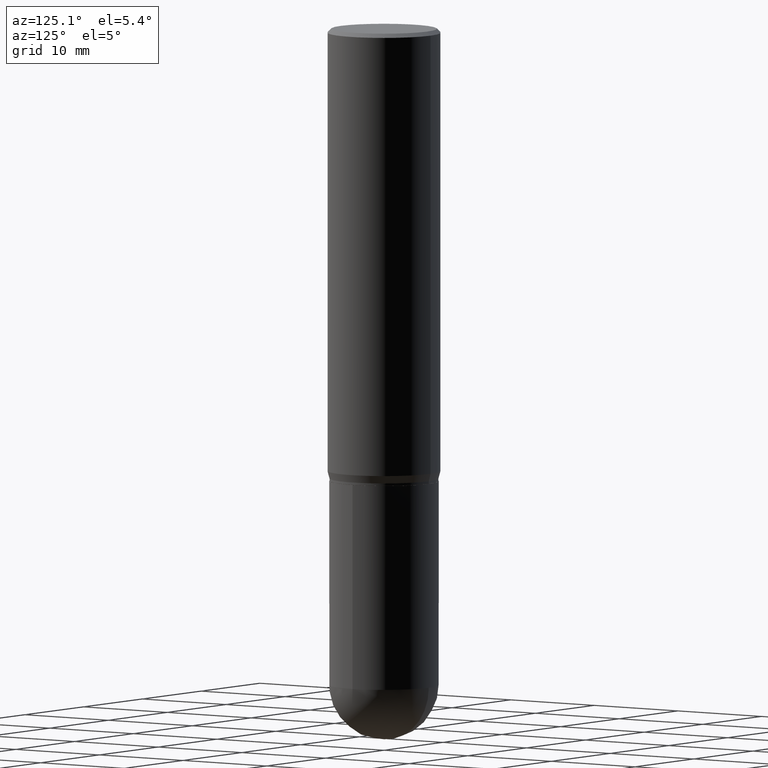
[diagram: clean part render]
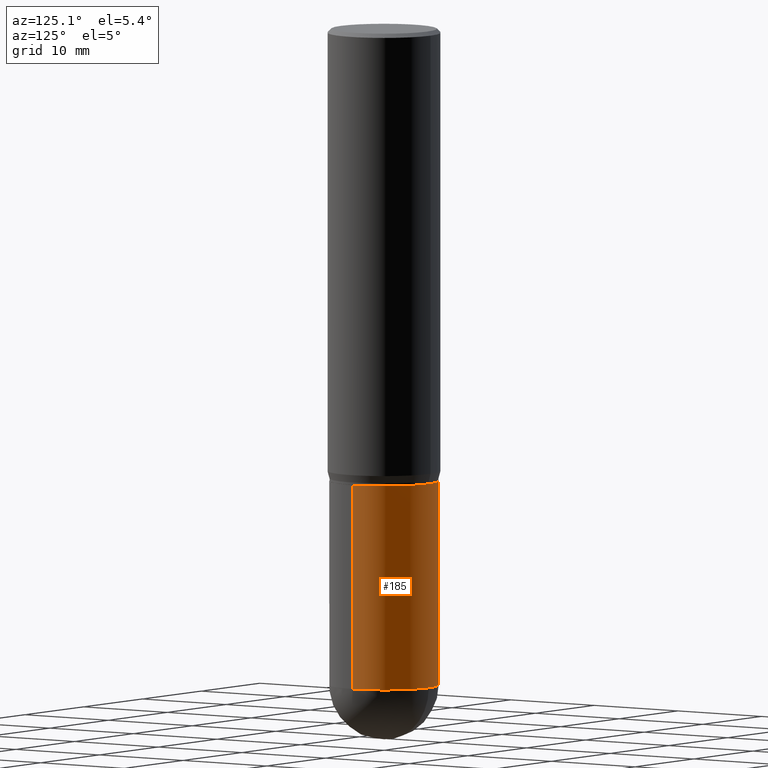
[diagram: same view with one face highlighted and labeled with its STEP entity id]
A machine part, auxiliary view. The second image highlights one B-rep face of the part: STEP entity #185.
In plain terms, the highlighted cylindrical surface (partial cylindrical patch) has radius 5.3581 mm, axis along (-0, 0, 1).
Its self-contained STEP definition (entity closure, byte-faithful):
#1 = VERTEX_POINT ( 'NONE', #20 ) ;
#7 = CIRCLE ( 'NONE', #248, 0.2109499999999999986 ) ;
#20 = CARTESIAN_POINT ( 'NONE',  ( 0.2109500000000000541, -8.960624995040515044E-15, -2.539050000000000473 ) ) ;
#23 = CARTESIAN_POINT ( 'NONE',  ( 1.473055976857980082E-15, 0.2109499999999912001, -2.539050000000000917 ) ) ;
#32 = CIRCLE ( 'NONE', #385, 0.2109500000000000541 ) ;
#41 = ORIENTED_EDGE ( 'NONE', *, *, #70, .F. ) ;
#47 = DIRECTION ( 'NONE',  ( -2.445468806185136877E-29, 3.491481338843145188E-15, 1.000000000000000000 ) ) ;
#52 = LINE ( 'NONE', #206, #106 ) ;
#70 = EDGE_CURVE ( 'NONE', #1, #177, #52, .T. ) ;
#71 = DIRECTION ( 'NONE',  ( 1.000000000000000000, -6.982962677686265133E-15, 0.000000000000000000 ) ) ;
#78 = ORIENTED_EDGE ( 'NONE', *, *, #363, .T. ) ;
#84 = FACE_OUTER_BOUND ( 'NONE', #151, .T. ) ;
#87 = CYLINDRICAL_SURFACE ( 'NONE', #259, 0.2109500000000000541 ) ;
#91 = VECTOR ( 'NONE', #47, 39.37007874015748143 ) ;
#104 = DIRECTION ( 'NONE',  ( 1.000000000000000000, -6.982962677686266711E-15, 0.000000000000000000 ) ) ;
#106 = VECTOR ( 'NONE', #359, 39.37007874015748143 ) ;
#127 = CARTESIAN_POINT ( 'NONE',  ( -0.2109500000000000541, 1.498889901085931727E-15, -1.037649357289272662E-29 ) ) ;
#130 = EDGE_CURVE ( 'NONE', #214, #336, #199, .T. ) ;
#135 = DIRECTION ( 'NONE',  ( -2.445468806185136597E-29, 3.491481338843145583E-15, 1.000000000000000000 ) ) ;
#151 = EDGE_LOOP ( 'NONE', ( #78, #171, #501, #41, #193 ) ) ;
#171 = ORIENTED_EDGE ( 'NONE', *, *, #130, .T. ) ;
#174 = CIRCLE ( 'NONE', #452, 0.2109500000000000541 ) ;
#176 = CARTESIAN_POINT ( 'NONE',  ( 0.000000000000000000, 0.000000000000000000, 0.000000000000000000 ) ) ;
#177 = VERTEX_POINT ( 'NONE', #438 ) ;
#185 = ADVANCED_FACE ( 'NONE', ( #84 ), #87, .T. ) ;
#193 = ORIENTED_EDGE ( 'NONE', *, *, #345, .T. ) ;
#199 = LINE ( 'NONE', #127, #91 ) ;
#206 = CARTESIAN_POINT ( 'NONE',  ( 0.2109500000000000541, -1.473055976857918157E-15, 1.028629490854152908E-29 ) ) ;
#214 = VERTEX_POINT ( 'NONE', #408 ) ;
#243 = DIRECTION ( 'NONE',  ( -2.445468806185136597E-29, 3.491481338843145583E-15, 1.000000000000000000 ) ) ;
#244 = VERTEX_POINT ( 'NONE', #23 ) ;
#248 = AXIS2_PLACEMENT_3D ( 'NONE', #316, #371, #104 ) ;
#255 = DIRECTION ( 'NONE',  ( -2.445468806185136597E-29, 3.491481338843145583E-15, 1.000000000000000000 ) ) ;
#259 = AXIS2_PLACEMENT_3D ( 'NONE', #176, #255, #289 ) ;
#282 = CARTESIAN_POINT ( 'NONE',  ( 6.209167572344372023E-29, -8.865045693389689499E-15, -2.539050000000000473 ) ) ;
#289 = DIRECTION ( 'NONE',  ( 1.000000000000000000, -6.982962677686265922E-15, 4.876176775795935793E-29 ) ) ;
#316 = CARTESIAN_POINT ( 'NONE',  ( 4.279570410823988484E-29, -6.110092342975504671E-15, -1.750000000000000000 ) ) ;
#322 = CARTESIAN_POINT ( 'NONE',  ( 6.209167572344372023E-29, -8.865045693389689499E-15, -2.539050000000000473 ) ) ;
#336 = VERTEX_POINT ( 'NONE', #446 ) ;
#338 = EDGE_CURVE ( 'NONE', #177, #336, #7, .T. ) ;
#345 = EDGE_CURVE ( 'NONE', #1, #244, #32, .T. ) ;
#359 = DIRECTION ( 'NONE',  ( -2.445468806185136877E-29, 3.491481338843145188E-15, 1.000000000000000000 ) ) ;
#363 = EDGE_CURVE ( 'NONE', #244, #214, #174, .T. ) ;
#371 = DIRECTION ( 'NONE',  ( -2.445468806185136597E-29, 3.491481338843145583E-15, 1.000000000000000000 ) ) ;
#385 = AXIS2_PLACEMENT_3D ( 'NONE', #282, #243, #407 ) ;
#407 = DIRECTION ( 'NONE',  ( 1.000000000000000000, -6.982962677686265133E-15, 0.000000000000000000 ) ) ;
#408 = CARTESIAN_POINT ( 'NONE',  ( -0.2109500000000000541, -5.988679117096665555E-15, -2.539050000000000473 ) ) ;
#438 = CARTESIAN_POINT ( 'NONE',  ( 0.2109499999999999986, -7.583148319833423025E-15, -1.750000000000000000 ) ) ;
#446 = CARTESIAN_POINT ( 'NONE',  ( -0.2109499999999999986, -5.988679117096665555E-15, -1.750000000000000000 ) ) ;
#452 = AXIS2_PLACEMENT_3D ( 'NONE', #322, #135, #71 ) ;
#501 = ORIENTED_EDGE ( 'NONE', *, *, #338, .F. ) ;